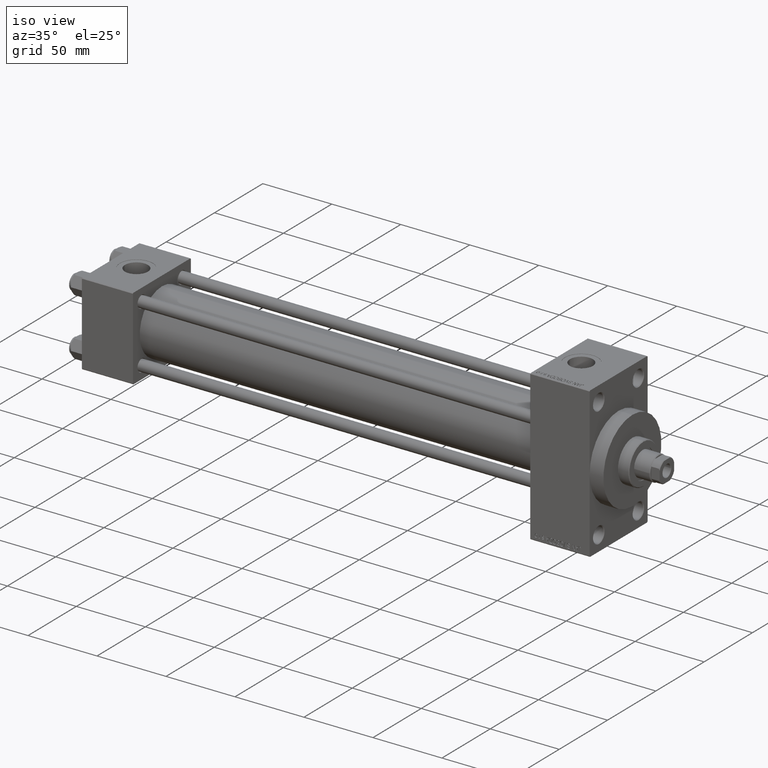
[diagram: clean part render]
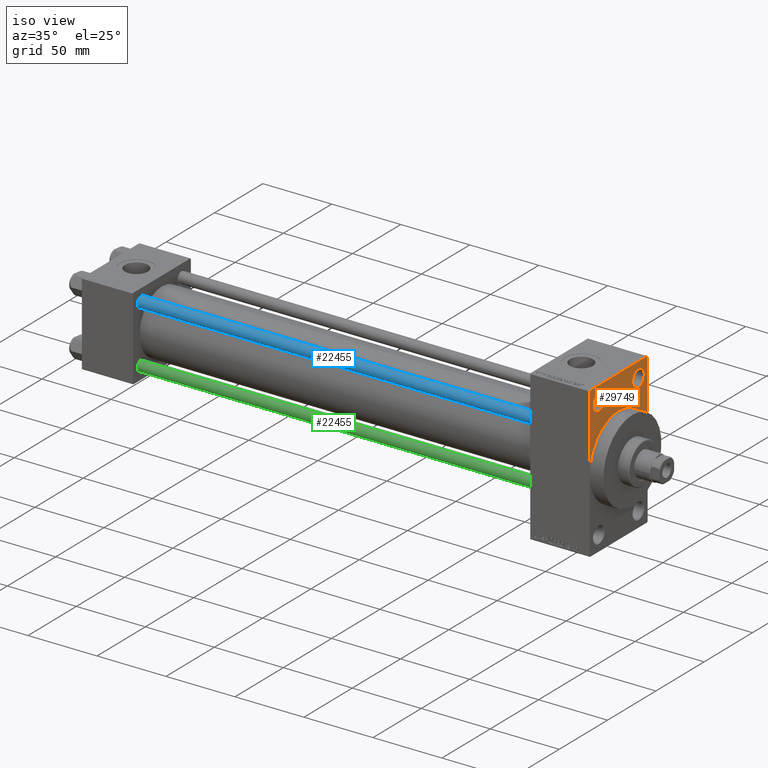
[diagram: same view with three faces highlighted in distinct colors, each labeled with its STEP entity id]
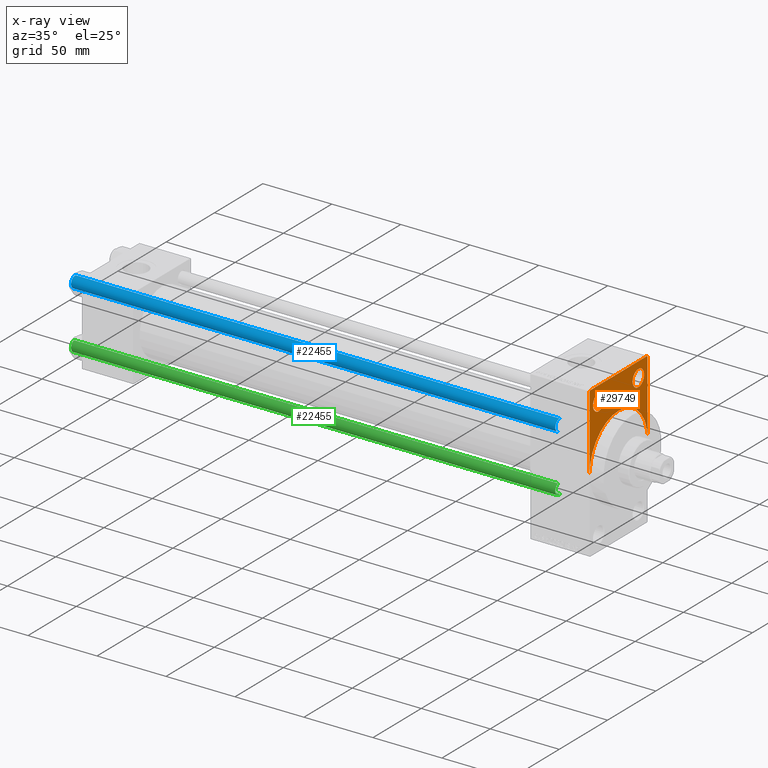
[diagram: x-ray of the same camera — body ghosted, the three highlighted faces saturated]
A machine part, iso view with three faces highlighted in distinct colors.
The next image is the same camera in x-ray (body ghosted, the three faces saturated) — at least one of them is partly hidden behind the body in this view.
Their STEP definitions:

[orange] entity #29749 — the highlighted planar face has unit normal (-1, 0, 0).
#299 = ORIENTED_EDGE ( 'NONE', *, *, #16058, .T. ) ;
#1956 = CARTESIAN_POINT ( 'NONE',  ( 367.9999999999999432, 0.000000000000000000, 0.000000000000000000 ) ) ;
#2134 = DIRECTION ( 'NONE',  ( 0.000000000000000000, -1.000000000000000000, 1.156482317317871478E-16 ) ) ;
#2672 = AXIS2_PLACEMENT_3D ( 'NONE', #27464, #30458, #31194 ) ;
#2739 = CARTESIAN_POINT ( 'NONE',  ( 367.9999999999999432, -20.50000000000000000, 43.50000000000000000 ) ) ;
#2803 = CARTESIAN_POINT ( 'NONE',  ( 367.9999999999999432, -30.00000000000000000, 53.99999999999988631 ) ) ;
#3391 = ORIENTED_EDGE ( 'NONE', *, *, #9132, .T. ) ;
#3757 = CIRCLE ( 'NONE', #48335, 6.000000000000005329 ) ;
#5821 = CARTESIAN_POINT ( 'NONE',  ( 367.9999999999999432, 29.99999999999999645, 53.99999999999999289 ) ) ;
#5912 = CIRCLE ( 'NONE', #39326, 30.00000000000000000 ) ;
#7091 = CARTESIAN_POINT ( 'NONE',  ( 367.9999999999999432, 30.00000000000000000, 0.000000000000000000 ) ) ;
#7361 = ORIENTED_EDGE ( 'NONE', *, *, #9469, .F. ) ;
#8991 = CARTESIAN_POINT ( 'NONE',  ( 367.9999999999999432, -30.00000000000000000, 0.000000000000000000 ) ) ;
#9132 = EDGE_CURVE ( 'NONE', #39800, #15572, #48520, .T. ) ;
#9275 = ORIENTED_EDGE ( 'NONE', *, *, #22517, .T. ) ;
#9469 = EDGE_CURVE ( 'NONE', #14057, #22680, #42938, .T. ) ;
#9708 = EDGE_CURVE ( 'NONE', #40603, #26187, #37021, .T. ) ;
#9720 = CARTESIAN_POINT ( 'NONE',  ( 367.9999999999999432, -20.50000000000000000, 43.50000000000000000 ) ) ;
#10072 = ORIENTED_EDGE ( 'NONE', *, *, #37728, .F. ) ;
#10373 = DIRECTION ( 'NONE',  ( -1.000000000000000000, 0.000000000000000000, -0.000000000000000000 ) ) ;
#10515 = CIRCLE ( 'NONE', #26445, 6.000000000000005329 ) ;
#12556 = EDGE_CURVE ( 'NONE', #46198, #22680, #44629, .T. ) ;
#13675 = CARTESIAN_POINT ( 'NONE',  ( 367.9999999999999432, -20.50000000000000000, 37.49999999999999289 ) ) ;
#13690 = ORIENTED_EDGE ( 'NONE', *, *, #23298, .F. ) ;
#14057 = VERTEX_POINT ( 'NONE', #30042 ) ;
#14443 = DIRECTION ( 'NONE',  ( 0.000000000000000000, 0.000000000000000000, 1.000000000000000000 ) ) ;
#14506 = LINE ( 'NONE', #2803, #46701 ) ;
#14560 = CARTESIAN_POINT ( 'NONE',  ( 367.9999999999999432, -20.50000000000000000, 49.50000000000000000 ) ) ;
#14685 = DIRECTION ( 'NONE',  ( 0.000000000000000000, 0.000000000000000000, -1.000000000000000000 ) ) ;
#14757 = DIRECTION ( 'NONE',  ( -0.000000000000000000, -0.7071067811865058284, -0.7071067811865892061 ) ) ;
#14926 = LINE ( 'NONE', #38117, #24205 ) ;
#15063 = AXIS2_PLACEMENT_3D ( 'NONE', #15347, #34325, #19348 ) ;
#15347 = CARTESIAN_POINT ( 'NONE',  ( 367.9999999999999432, 0.000000000000000000, 0.000000000000000000 ) ) ;
#15572 = VERTEX_POINT ( 'NONE', #13675 ) ;
#15877 = EDGE_CURVE ( 'NONE', #28870, #36055, #10515, .T. ) ;
#16058 = EDGE_CURVE ( 'NONE', #47780, #40603, #47687, .T. ) ;
#16208 = CARTESIAN_POINT ( 'NONE',  ( 367.9999999999999432, 20.50000000000000000, 37.49999999999999289 ) ) ;
#16651 = CARTESIAN_POINT ( 'NONE',  ( 367.9999999999999432, -29.49999999999994671, 54.50000000000000000 ) ) ;
#17050 = CARTESIAN_POINT ( 'NONE',  ( 367.9999999999999432, 20.50000000000000000, 49.50000000000000000 ) ) ;
#18307 = VECTOR ( 'NONE', #2134, 1000.000000000000000 ) ;
#18338 = CARTESIAN_POINT ( 'NONE',  ( 367.9999999999999432, 20.50000000000000000, 43.50000000000000000 ) ) ;
#19348 = DIRECTION ( 'NONE',  ( 0.000000000000000000, 0.000000000000000000, -1.000000000000000000 ) ) ;
#20650 = PLANE ( 'NONE',  #43541 ) ;
#20857 = VECTOR ( 'NONE', #47188, 1000.000000000000000 ) ;
#20933 = DIRECTION ( 'NONE',  ( 0.000000000000000000, 0.000000000000000000, 1.000000000000000000 ) ) ;
#21529 = VECTOR ( 'NONE', #48859, 1000.000000000000000 ) ;
#22517 = EDGE_CURVE ( 'NONE', #36055, #28870, #37738, .T. ) ;
#22680 = VERTEX_POINT ( 'NONE', #8991 ) ;
#23298 = EDGE_CURVE ( 'NONE', #31519, #14057, #5912, .T. ) ;
#23893 = FACE_BOUND ( 'NONE', #38037, .T. ) ;
#24205 = VECTOR ( 'NONE', #14685, 1000.000000000000000 ) ;
#25312 = ORIENTED_EDGE ( 'NONE', *, *, #45110, .T. ) ;
#25316 = DIRECTION ( 'NONE',  ( 0.000000000000000000, 0.000000000000000000, 1.000000000000000000 ) ) ;
#25549 = DIRECTION ( 'NONE',  ( 1.000000000000000000, 0.000000000000000000, 0.000000000000000000 ) ) ;
#26187 = VERTEX_POINT ( 'NONE', #16651 ) ;
#26445 = AXIS2_PLACEMENT_3D ( 'NONE', #18338, #10373, #25316 ) ;
#27030 = AXIS2_PLACEMENT_3D ( 'NONE', #2739, #41371, #14443 ) ;
#27464 = CARTESIAN_POINT ( 'NONE',  ( 367.9999999999999432, 20.50000000000000000, 43.50000000000000000 ) ) ;
#27638 = DIRECTION ( 'NONE',  ( -1.000000000000000000, 0.000000000000000000, -0.000000000000000000 ) ) ;
#28870 = VERTEX_POINT ( 'NONE', #16208 ) ;
#29399 = EDGE_CURVE ( 'NONE', #26187, #46198, #14506, .T. ) ;
#29749 = ADVANCED_FACE ( 'NONE', ( #23893, #32370, #46594 ), #20650, .F. ) ;
#30042 = CARTESIAN_POINT ( 'NONE',  ( 367.9999999999999432, 0.000000000000000000, 30.00000000000000000 ) ) ;
#30458 = DIRECTION ( 'NONE',  ( -1.000000000000000000, 0.000000000000000000, -0.000000000000000000 ) ) ;
#31194 = DIRECTION ( 'NONE',  ( 0.000000000000000000, 0.000000000000000000, 1.000000000000000000 ) ) ;
#31519 = VERTEX_POINT ( 'NONE', #7091 ) ;
#31985 = CARTESIAN_POINT ( 'NONE',  ( 367.9999999999999432, 29.50000000000004974, 54.49999999999999289 ) ) ;
#32370 = FACE_BOUND ( 'NONE', #40497, .T. ) ;
#33030 = CARTESIAN_POINT ( 'NONE',  ( 367.9999999999999432, 29.99999999999999645, 54.49999999999999289 ) ) ;
#33500 = ORIENTED_EDGE ( 'NONE', *, *, #12556, .T. ) ;
#33546 = DIRECTION ( 'NONE',  ( 0.000000000000000000, 0.000000000000000000, -1.000000000000000000 ) ) ;
#33660 = CARTESIAN_POINT ( 'NONE',  ( 367.9999999999999432, -30.00000000000000000, 54.50000000000000000 ) ) ;
#34325 = DIRECTION ( 'NONE',  ( 1.000000000000000000, 0.000000000000000000, 0.000000000000000000 ) ) ;
#34535 = ORIENTED_EDGE ( 'NONE', *, *, #15877, .T. ) ;
#35868 = DIRECTION ( 'NONE',  ( -0.000000000000000000, 0.000000000000000000, 1.000000000000000000 ) ) ;
#36055 = VERTEX_POINT ( 'NONE', #17050 ) ;
#37021 = LINE ( 'NONE', #33030, #18307 ) ;
#37728 = EDGE_CURVE ( 'NONE', #47780, #31519, #14926, .T. ) ;
#37738 = CIRCLE ( 'NONE', #2672, 6.000000000000005329 ) ;
#37750 = ORIENTED_EDGE ( 'NONE', *, *, #9708, .T. ) ;
#38037 = EDGE_LOOP ( 'NONE', ( #25312, #3391 ) ) ;
#38117 = CARTESIAN_POINT ( 'NONE',  ( 367.9999999999999432, 29.99999999999999645, 54.49999999999999289 ) ) ;
#39326 = AXIS2_PLACEMENT_3D ( 'NONE', #47995, #25549, #33546 ) ;
#39800 = VERTEX_POINT ( 'NONE', #14560 ) ;
#40497 = EDGE_LOOP ( 'NONE', ( #34535, #9275 ) ) ;
#40603 = VERTEX_POINT ( 'NONE', #47751 ) ;
#41371 = DIRECTION ( 'NONE',  ( -1.000000000000000000, 0.000000000000000000, -0.000000000000000000 ) ) ;
#42450 = ORIENTED_EDGE ( 'NONE', *, *, #29399, .T. ) ;
#42938 = CIRCLE ( 'NONE', #15063, 30.00000000000000000 ) ;
#43541 = AXIS2_PLACEMENT_3D ( 'NONE', #1956, #27638, #35868 ) ;
#44629 = LINE ( 'NONE', #33660, #21529 ) ;
#45110 = EDGE_CURVE ( 'NONE', #15572, #39800, #3757, .T. ) ;
#45517 = EDGE_LOOP ( 'NONE', ( #37750, #42450, #33500, #7361, #13690, #10072, #299 ) ) ;
#46198 = VERTEX_POINT ( 'NONE', #47433 ) ;
#46594 = FACE_OUTER_BOUND ( 'NONE', #45517, .T. ) ;
#46701 = VECTOR ( 'NONE', #14757, 1000.000000000000000 ) ;
#47188 = DIRECTION ( 'NONE',  ( 0.000000000000000000, -0.7071067811865081598, 0.7071067811865868746 ) ) ;
#47433 = CARTESIAN_POINT ( 'NONE',  ( 367.9999999999999432, -30.00000000000000000, 53.99999999999988631 ) ) ;
#47617 = DIRECTION ( 'NONE',  ( -1.000000000000000000, 0.000000000000000000, -0.000000000000000000 ) ) ;
#47687 = LINE ( 'NONE', #31985, #20857 ) ;
#47751 = CARTESIAN_POINT ( 'NONE',  ( 367.9999999999999432, 29.50000000000004974, 54.49999999999999289 ) ) ;
#47780 = VERTEX_POINT ( 'NONE', #5821 ) ;
#47995 = CARTESIAN_POINT ( 'NONE',  ( 367.9999999999999432, 0.000000000000000000, 0.000000000000000000 ) ) ;
#48335 = AXIS2_PLACEMENT_3D ( 'NONE', #9720, #47617, #20933 ) ;
#48520 = CIRCLE ( 'NONE', #27030, 6.000000000000005329 ) ;
#48859 = DIRECTION ( 'NONE',  ( 0.000000000000000000, 0.000000000000000000, -1.000000000000000000 ) ) ;

[blue] entity #22455 — the highlighted cylindrical surface (edge-blend (fillet) strip) has radius 4 mm, axis along (1, 0, 0).
#2598 = VECTOR ( 'NONE', #13902, 1000.000000000000000 ) ;
#2983 = DIRECTION ( 'NONE',  ( -0.000000000000000000, -0.000000000000000000, 1.000000000000000000 ) ) ;
#3470 = CARTESIAN_POINT ( 'NONE',  ( 0.000000000000000000, 0.000000000000000000, 0.5000000000000004441 ) ) ;
#4502 = CIRCLE ( 'NONE', #39553, 4.000000000000000000 ) ;
#4810 = VERTEX_POINT ( 'NONE', #9438 ) ;
#4861 = EDGE_LOOP ( 'NONE', ( #8481, #18904, #38086, #19226 ) ) ;
#6984 = AXIS2_PLACEMENT_3D ( 'NONE', #3470, #2983, #18669 ) ;
#7047 = CARTESIAN_POINT ( 'NONE',  ( 0.000000000000000000, 0.000000000000000000, 352.0000000000000000 ) ) ;
#7480 = AXIS2_PLACEMENT_3D ( 'NONE', #7047, #22246, #44690 ) ;
#8481 = ORIENTED_EDGE ( 'NONE', *, *, #43692, .T. ) ;
#9050 = CARTESIAN_POINT ( 'NONE',  ( -4.000000000000000000, 0.000000000000000000, 0.5000000000000004441 ) ) ;
#9438 = CARTESIAN_POINT ( 'NONE',  ( 4.000000000000000000, 4.898587196589412829E-16, 0.5000000000000004441 ) ) ;
#9679 = CARTESIAN_POINT ( 'NONE',  ( 4.000000000000000000, 4.898587196589412829E-16, 352.0000000000000000 ) ) ;
#9995 = VERTEX_POINT ( 'NONE', #9050 ) ;
#11849 = EDGE_CURVE ( 'NONE', #11954, #9995, #22533, .T. ) ;
#11954 = VERTEX_POINT ( 'NONE', #33778 ) ;
#13902 = DIRECTION ( 'NONE',  ( -0.000000000000000000, -0.000000000000000000, -1.000000000000000000 ) ) ;
#14122 = CIRCLE ( 'NONE', #6984, 4.000000000000000000 ) ;
#15054 = CARTESIAN_POINT ( 'NONE',  ( -4.000000000000000000, 0.000000000000000000, 352.0000000000000000 ) ) ;
#18496 = FACE_OUTER_BOUND ( 'NONE', #4861, .T. ) ;
#18669 = DIRECTION ( 'NONE',  ( 1.000000000000000000, 0.000000000000000000, 0.000000000000000000 ) ) ;
#18904 = ORIENTED_EDGE ( 'NONE', *, *, #20486, .T. ) ;
#19177 = DIRECTION ( 'NONE',  ( 1.000000000000000000, 0.000000000000000000, 0.000000000000000000 ) ) ;
#19226 = ORIENTED_EDGE ( 'NONE', *, *, #11849, .F. ) ;
#20486 = EDGE_CURVE ( 'NONE', #22629, #4810, #39848, .T. ) ;
#22246 = DIRECTION ( 'NONE',  ( -0.000000000000000000, -0.000000000000000000, -1.000000000000000000 ) ) ;
#22455 = ADVANCED_FACE ( 'NONE', ( #18496 ), #41439, .T. ) ;
#22533 = LINE ( 'NONE', #15054, #24742 ) ;
#22629 = VERTEX_POINT ( 'NONE', #23955 ) ;
#22914 = CARTESIAN_POINT ( 'NONE',  ( 0.000000000000000000, 0.000000000000000000, 351.5000000000000000 ) ) ;
#23955 = CARTESIAN_POINT ( 'NONE',  ( 4.000000000000000000, 4.898587196589412829E-16, 351.5000000000000000 ) ) ;
#24742 = VECTOR ( 'NONE', #48722, 1000.000000000000000 ) ;
#31025 = EDGE_CURVE ( 'NONE', #4810, #9995, #14122, .T. ) ;
#33778 = CARTESIAN_POINT ( 'NONE',  ( -4.000000000000000000, 0.000000000000000000, 351.5000000000000000 ) ) ;
#38086 = ORIENTED_EDGE ( 'NONE', *, *, #31025, .T. ) ;
#39553 = AXIS2_PLACEMENT_3D ( 'NONE', #22914, #45610, #19177 ) ;
#39848 = LINE ( 'NONE', #9679, #2598 ) ;
#41439 = CYLINDRICAL_SURFACE ( 'NONE', #7480, 4.000000000000000000 ) ;
#43692 = EDGE_CURVE ( 'NONE', #11954, #22629, #4502, .T. ) ;
#44690 = DIRECTION ( 'NONE',  ( -1.000000000000000000, 0.000000000000000000, 0.000000000000000000 ) ) ;
#45610 = DIRECTION ( 'NONE',  ( 0.000000000000000000, 0.000000000000000000, -1.000000000000000000 ) ) ;
#48722 = DIRECTION ( 'NONE',  ( -0.000000000000000000, -0.000000000000000000, -1.000000000000000000 ) ) ;

[green] entity #22455 — the highlighted cylindrical surface (edge-blend (fillet) strip) has radius 4 mm, axis along (-1, 0, 0).
#2598 = VECTOR ( 'NONE', #13902, 1000.000000000000000 ) ;
#2983 = DIRECTION ( 'NONE',  ( -0.000000000000000000, -0.000000000000000000, 1.000000000000000000 ) ) ;
#3470 = CARTESIAN_POINT ( 'NONE',  ( 0.000000000000000000, 0.000000000000000000, 0.5000000000000004441 ) ) ;
#4502 = CIRCLE ( 'NONE', #39553, 4.000000000000000000 ) ;
#4810 = VERTEX_POINT ( 'NONE', #9438 ) ;
#4861 = EDGE_LOOP ( 'NONE', ( #8481, #18904, #38086, #19226 ) ) ;
#6984 = AXIS2_PLACEMENT_3D ( 'NONE', #3470, #2983, #18669 ) ;
#7047 = CARTESIAN_POINT ( 'NONE',  ( 0.000000000000000000, 0.000000000000000000, 352.0000000000000000 ) ) ;
#7480 = AXIS2_PLACEMENT_3D ( 'NONE', #7047, #22246, #44690 ) ;
#8481 = ORIENTED_EDGE ( 'NONE', *, *, #43692, .T. ) ;
#9050 = CARTESIAN_POINT ( 'NONE',  ( -4.000000000000000000, 0.000000000000000000, 0.5000000000000004441 ) ) ;
#9438 = CARTESIAN_POINT ( 'NONE',  ( 4.000000000000000000, 4.898587196589412829E-16, 0.5000000000000004441 ) ) ;
#9679 = CARTESIAN_POINT ( 'NONE',  ( 4.000000000000000000, 4.898587196589412829E-16, 352.0000000000000000 ) ) ;
#9995 = VERTEX_POINT ( 'NONE', #9050 ) ;
#11849 = EDGE_CURVE ( 'NONE', #11954, #9995, #22533, .T. ) ;
#11954 = VERTEX_POINT ( 'NONE', #33778 ) ;
#13902 = DIRECTION ( 'NONE',  ( -0.000000000000000000, -0.000000000000000000, -1.000000000000000000 ) ) ;
#14122 = CIRCLE ( 'NONE', #6984, 4.000000000000000000 ) ;
#15054 = CARTESIAN_POINT ( 'NONE',  ( -4.000000000000000000, 0.000000000000000000, 352.0000000000000000 ) ) ;
#18496 = FACE_OUTER_BOUND ( 'NONE', #4861, .T. ) ;
#18669 = DIRECTION ( 'NONE',  ( 1.000000000000000000, 0.000000000000000000, 0.000000000000000000 ) ) ;
#18904 = ORIENTED_EDGE ( 'NONE', *, *, #20486, .T. ) ;
#19177 = DIRECTION ( 'NONE',  ( 1.000000000000000000, 0.000000000000000000, 0.000000000000000000 ) ) ;
#19226 = ORIENTED_EDGE ( 'NONE', *, *, #11849, .F. ) ;
#20486 = EDGE_CURVE ( 'NONE', #22629, #4810, #39848, .T. ) ;
#22246 = DIRECTION ( 'NONE',  ( -0.000000000000000000, -0.000000000000000000, -1.000000000000000000 ) ) ;
#22455 = ADVANCED_FACE ( 'NONE', ( #18496 ), #41439, .T. ) ;
#22533 = LINE ( 'NONE', #15054, #24742 ) ;
#22629 = VERTEX_POINT ( 'NONE', #23955 ) ;
#22914 = CARTESIAN_POINT ( 'NONE',  ( 0.000000000000000000, 0.000000000000000000, 351.5000000000000000 ) ) ;
#23955 = CARTESIAN_POINT ( 'NONE',  ( 4.000000000000000000, 4.898587196589412829E-16, 351.5000000000000000 ) ) ;
#24742 = VECTOR ( 'NONE', #48722, 1000.000000000000000 ) ;
#31025 = EDGE_CURVE ( 'NONE', #4810, #9995, #14122, .T. ) ;
#33778 = CARTESIAN_POINT ( 'NONE',  ( -4.000000000000000000, 0.000000000000000000, 351.5000000000000000 ) ) ;
#38086 = ORIENTED_EDGE ( 'NONE', *, *, #31025, .T. ) ;
#39553 = AXIS2_PLACEMENT_3D ( 'NONE', #22914, #45610, #19177 ) ;
#39848 = LINE ( 'NONE', #9679, #2598 ) ;
#41439 = CYLINDRICAL_SURFACE ( 'NONE', #7480, 4.000000000000000000 ) ;
#43692 = EDGE_CURVE ( 'NONE', #11954, #22629, #4502, .T. ) ;
#44690 = DIRECTION ( 'NONE',  ( -1.000000000000000000, 0.000000000000000000, 0.000000000000000000 ) ) ;
#45610 = DIRECTION ( 'NONE',  ( 0.000000000000000000, 0.000000000000000000, -1.000000000000000000 ) ) ;
#48722 = DIRECTION ( 'NONE',  ( -0.000000000000000000, -0.000000000000000000, -1.000000000000000000 ) ) ;